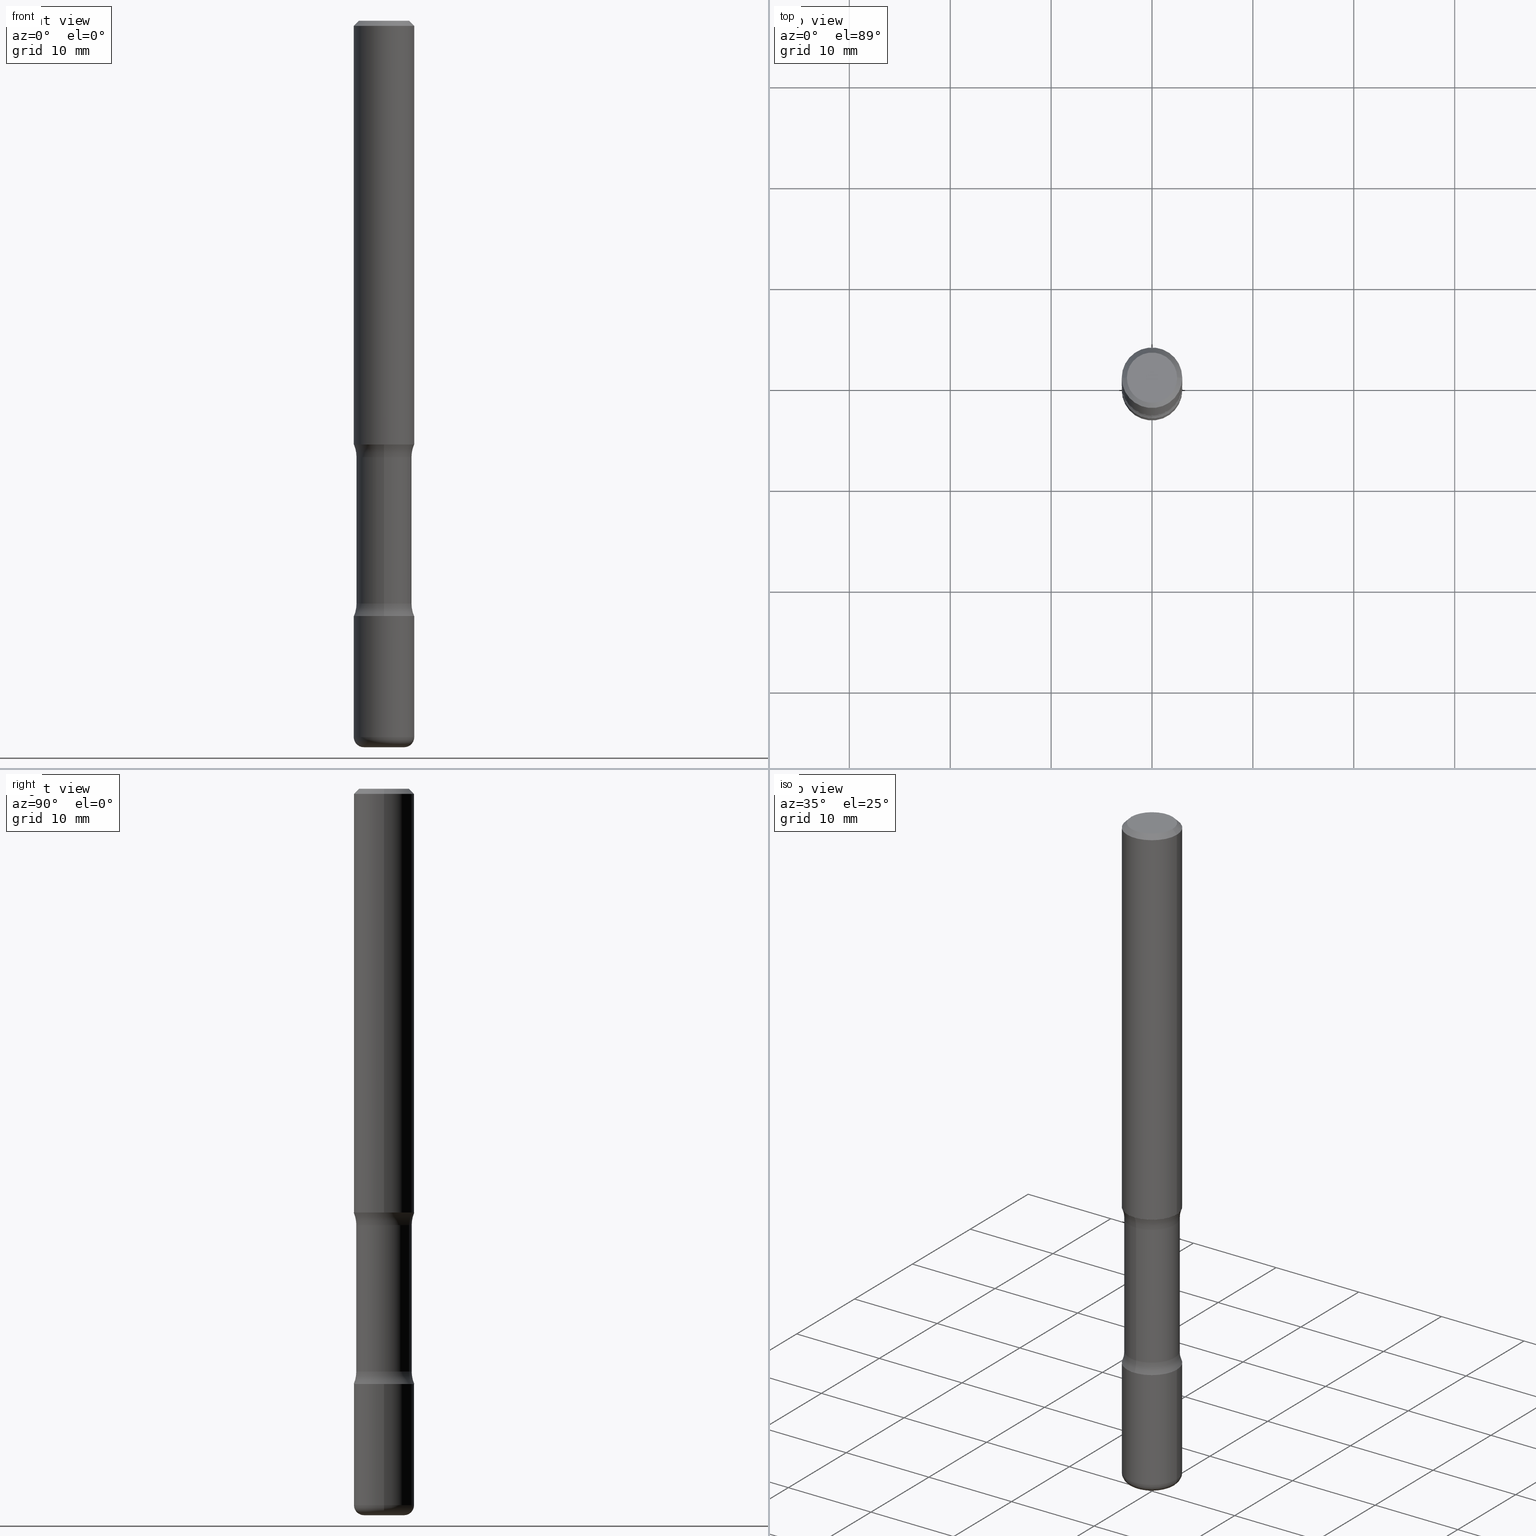
[diagram: canonical four-view strip — front | top / right | iso, engineering-drawing reading convention]
A machine part, canonical four-view strip (front | top / right | iso — engineering-drawing reading convention). The complete STEP part file that produces these views, byte-faithful:
ISO-10303-21;
HEADER;
FILE_DESCRIPTION (( 'STEP AP203' ),
    '1' );
FILE_NAME ('44792.STEP',
    '2024-03-02T03:22:04',
    ( '' ),
    ( '' ),
    'SwSTEP 2.0',
    'SolidWorks 2023',
    '' );
FILE_SCHEMA (( 'CONFIG_CONTROL_DESIGN' ));
ENDSEC;

DATA;
#1 = CARTESIAN_POINT ( 'NONE',  ( 1.627379452034826207E-15, 0.2330499999999940952, -1.702607000519273717 ) ) ;
#2 = ORIENTED_EDGE ( 'NONE', *, *, #118, .F. ) ;
#3 = TOROIDAL_SURFACE ( 'NONE', #364, 0.2330500000000000349, 0.1250000000000000278 ) ;
#4 = VERTEX_POINT ( 'NONE', #171 ) ;
#5 = CARTESIAN_POINT ( 'NONE',  ( 0.000000000000000000, 0.000000000000000000, 0.000000000000000000 ) ) ;
#6 = EDGE_CURVE ( 'NONE', #232, #475, #419, .T. ) ;
#7 = PERSON_AND_ORGANIZATION ( #362, #44 ) ;
#8 = CARTESIAN_POINT ( 'NONE',  ( -8.102248135367616287E-16, -0.1181000000000081568, -2.322799999999998644 ) ) ;
#9 = AXIS2_PLACEMENT_3D ( 'NONE', #199, #374, #546 ) ;
#10 = AXIS2_PLACEMENT_3D ( 'NONE', #345, #250, #167 ) ;
#11 = AXIS2_PLACEMENT_3D ( 'NONE', #390, #481, #393 ) ;
#12 = PERSON_AND_ORGANIZATION ( #362, #44 ) ;
#13 = DIRECTION ( 'NONE',  ( 0.7071067811865473507, -7.319954787623256045E-15, -0.7071067811865476838 ) ) ;
#14 = ORIENTED_EDGE ( 'NONE', *, *, #83, .F. ) ;
#15 = DIRECTION ( 'NONE',  ( -2.445468806185136597E-29, 3.491481338843145583E-15, 1.000000000000000000 ) ) ;
#16 = ORIENTED_EDGE ( 'NONE', *, *, #218, .T. ) ;
#17 = SECURITY_CLASSIFICATION_LEVEL ( 'unclassified' ) ;
#18 = CYLINDRICAL_SURFACE ( 'NONE', #359, 0.1080500000000000210 ) ;
#19 = ADVANCED_FACE ( 'NONE', ( #129 ), #254, .T. ) ;
#20 = ORIENTED_EDGE ( 'NONE', *, *, #68, .T. ) ;
#21 = DATE_AND_TIME ( #452, #279 ) ;
#22 = CARTESIAN_POINT ( 'NONE',  ( 1.627379452034840012E-15, 0.2330499999999920968, -2.273692999480725341 ) ) ;
#23 = VERTEX_POINT ( 'NONE', #301 ) ;
#24 = VERTEX_POINT ( 'NONE', #298 ) ;
#25 = EDGE_CURVE ( 'NONE', #195, #23, #281, .T. ) ;
#26 = DIRECTION ( 'NONE',  ( 1.000000000000000000, -6.982962677686266711E-15, 4.876176775795936353E-29 ) ) ;
#27 = AXIS2_PLACEMENT_3D ( 'NONE', #115, #160, #287 ) ;
#28 = CARTESIAN_POINT ( 'NONE',  ( 6.931925878012387517E-29, -9.896953003084780885E-15, -2.834600000000000009 ) ) ;
#29 = CYLINDRICAL_SURFACE ( 'NONE', #532, 0.1181000000000001077 ) ;
#30 = EDGE_CURVE ( 'NONE', #76, #23, #438, .T. ) ;
#31 = DIRECTION ( 'NONE',  ( 6.982962677686265922E-15, 1.000000000000000000, -2.313165108945183485E-15 ) ) ;
#32 = AXIS2_PLACEMENT_3D ( 'NONE', #448, #139, #499 ) ;
#33 = ORIENTED_EDGE ( 'NONE', *, *, #446, .F. ) ;
#34 = AXIS2_PLACEMENT_3D ( 'NONE', #235, #237, #332 ) ;
#35 = ORIENTED_EDGE ( 'NONE', *, *, #382, .T. ) ;
#36 = AXIS2_PLACEMENT_3D ( 'NONE', #5, #395, #337 ) ;
#37 = CARTESIAN_POINT ( 'NONE',  ( 4.890937612370289799E-31, -6.982962677686315028E-17, -0.02000000000000006981 ) ) ;
#38 = DIRECTION ( 'NONE',  ( -2.445468806185136597E-29, 3.491481338843145583E-15, 1.000000000000000000 ) ) ;
#39 = ADVANCED_FACE ( 'NONE', ( #514 ), #86, .T. ) ;
#40 = DIRECTION ( 'NONE',  ( 6.982962677686265922E-15, 1.000000000000000000, -2.528318365260769736E-15 ) ) ;
#41 = ORIENTED_EDGE ( 'NONE', *, *, #454, .F. ) ;
#42 = CIRCLE ( 'NONE', #27, 0.1250000000000000278 ) ;
#43 = CARTESIAN_POINT ( 'NONE',  ( 7.545091173240566728E-16, 0.1080499999999920691, -2.273692999480724897 ) ) ;
#44 = ORGANIZATION ( 'UNSPECIFIED', 'UNSPECIFIED', '' ) ;
#45 = ORIENTED_EDGE ( 'NONE', *, *, #446, .T. ) ;
#46 = DIRECTION ( 'NONE',  ( 2.515355941959131519E-29, -3.391398982686043410E-15, -1.000000000000000000 ) ) ;
#47 = DIRECTION ( 'NONE',  ( 2.515355941959131519E-29, -3.391398982686043410E-15, -1.000000000000000000 ) ) ;
#48 = CC_DESIGN_DATE_AND_TIME_ASSIGNMENT ( #225, #403, ( #80 ) ) ;
#49 = CARTESIAN_POINT ( 'NONE',  ( -8.102248135367784906E-16, -0.1181000000000059363, -1.653499999999998193 ) ) ;
#50 = APPLICATION_CONTEXT ( 'configuration controlled 3d designs of mechanical parts and assemblies' ) ;
#51 = DATE_AND_TIME ( #449, #558 ) ;
#52 = DIRECTION ( 'NONE',  ( 1.000000000000000000, -6.860497997771530774E-15, 4.842024534995332075E-29 ) ) ;
#53 = CIRCLE ( 'NONE', #144, 0.1250000000000000278 ) ;
#54 = TOROIDAL_SURFACE ( 'NONE', #178, 0.2330500000000000349, 0.1250000000000000278 ) ;
#55 = VERTEX_POINT ( 'NONE', #49 ) ;
#56 = DATE_TIME_ROLE ( 'creation_date' ) ;
#57 = DIRECTION ( 'NONE',  ( 2.515355941959131799E-29, -3.391398982686043015E-15, -1.000000000000000000 ) ) ;
#58 = PERSON_AND_ORGANIZATION ( #362, #44 ) ;
#59 = CC_DESIGN_DATE_AND_TIME_ASSIGNMENT ( #51, #56, ( #465 ) ) ;
#60 = FACE_OUTER_BOUND ( 'NONE', #431, .T. ) ;
#61 = ORIENTED_EDGE ( 'NONE', *, *, #316, .F. ) ;
#62 = APPLICATION_PROTOCOL_DEFINITION ( 'international standard', 'config_control_design', 1994, #259 ) ;
#63 = DIRECTION ( 'NONE',  ( 6.982962677686265922E-15, 1.000000000000000000, -3.391398982686043015E-15 ) ) ;
#64 = CIRCLE ( 'NONE', #456, 0.1181000000000000660 ) ;
#65 = APPROVAL_PERSON_ORGANIZATION ( #12, #509, #441 ) ;
#66 = ORIENTED_EDGE ( 'NONE', *, *, #273, .F. ) ;
#67 = DIRECTION ( 'NONE',  ( -0.7071067811865473507, 2.468850131082255088E-15, -0.7071067811865476838 ) ) ;
#68 = EDGE_CURVE ( 'NONE', #475, #232, #248, .T. ) ;
#69 = ORIENTED_EDGE ( 'NONE', *, *, #479, .F. ) ;
#70 = DIRECTION ( 'NONE',  ( -2.445468806185136877E-29, 3.491481338843145188E-15, 1.000000000000000000 ) ) ;
#71 = DIRECTION ( 'NONE',  ( 1.000000000000000000, -6.982962677686257244E-15, 0.000000000000000000 ) ) ;
#72 = CIRCLE ( 'NONE', #79, 0.1181000000000000660 ) ;
#73 = DIRECTION ( 'NONE',  ( -2.445468806185136597E-29, 3.491481338843145583E-15, 1.000000000000000000 ) ) ;
#74 = LINE ( 'NONE', #469, #288 ) ;
#75 = ADVANCED_FACE ( 'NONE', ( #176 ), #134, .T. ) ;
#76 = VERTEX_POINT ( 'NONE', #555 ) ;
#77 = FACE_OUTER_BOUND ( 'NONE', #494, .T. ) ;
#78 = EDGE_LOOP ( 'NONE', ( #207, #451 ) ) ;
#79 = AXIS2_PLACEMENT_3D ( 'NONE', #543, #154, #31 ) ;
#80 = SECURITY_CLASSIFICATION ( '', '', #17 ) ;
#81 =( CONVERSION_BASED_UNIT ( 'INCH', #424 ) LENGTH_UNIT ( ) NAMED_UNIT ( #545 ) );
#82 = DIRECTION ( 'NONE',  ( -2.445468806185136597E-29, 3.491481338843145583E-15, 1.000000000000000000 ) ) ;
#83 = EDGE_CURVE ( 'NONE', #76, #462, #437, .T. ) ;
#84 = VERTEX_POINT ( 'NONE', #209 ) ;
#85 = DIRECTION ( 'NONE',  ( 2.515355941959131519E-29, -3.391398982686043410E-15, -1.000000000000000000 ) ) ;
#86 = PLANE ( 'NONE',  #180 ) ;
#87 = ORIENTED_EDGE ( 'NONE', *, *, #382, .F. ) ;
#88 = VECTOR ( 'NONE', #334, 39.37007874015748143 ) ;
#89 = CARTESIAN_POINT ( 'NONE',  ( -0.1181000000000003713, 8.391509709326809581E-16, -5.809262341591062001E-30 ) ) ;
#90 = ADVANCED_FACE ( 'NONE', ( #168 ), #518, .F. ) ;
#91 = EDGE_LOOP ( 'NONE', ( #184, #423, #106, #20 ) ) ;
#92 = PERSON_AND_ORGANIZATION ( #362, #44 ) ;
#93 = CARTESIAN_POINT ( 'NONE',  ( 0.000000000000000000, 0.000000000000000000, 0.000000000000000000 ) ) ;
#94 = PERSON_AND_ORGANIZATION_ROLE ( 'design_owner' ) ;
#95 = DIRECTION ( 'NONE',  ( 1.000000000000000000, -6.982962677686265922E-15, 4.877161320636760066E-29 ) ) ;
#96 = EDGE_LOOP ( 'NONE', ( #405, #265, #346, #190 ) ) ;
#97 = AXIS2_PLACEMENT_3D ( 'NONE', #194, #508, #241 ) ;
#98 = CARTESIAN_POINT ( 'NONE',  ( 0.1181000000000003713, -8.246878922347507278E-16, 5.758764772215018657E-30 ) ) ;
#99 = EDGE_CURVE ( 'NONE', #503, #349, #493, .T. ) ;
#100 = CLOSED_SHELL ( 'NONE', ( #19, #159, #544, #236, #261, #357 ) ) ;
#101 = PERSON_AND_ORGANIZATION ( #362, #44 ) ;
#102 = FACE_OUTER_BOUND ( 'NONE', #147, .T. ) ;
#103 = ORIENTED_EDGE ( 'NONE', *, *, #218, .F. ) ;
#104 = DATE_AND_TIME ( #142, #483 ) ;
#105 = DIRECTION ( 'NONE',  ( 6.860497997771531562E-15, 1.000000000000000000, 0.000000000000000000 ) ) ;
#106 = ORIENTED_EDGE ( 'NONE', *, *, #181, .T. ) ;
#107 = FACE_OUTER_BOUND ( 'NONE', #234, .T. ) ;
#108 = ADVANCED_FACE ( 'NONE', ( #107 ), #3, .F. ) ;
#109 = AXIS2_PLACEMENT_3D ( 'NONE', #152, #15, #311 ) ;
#110 = ORIENTED_EDGE ( 'NONE', *, *, #205, .F. ) ;
#111 = VECTOR ( 'NONE', #384, 39.37007874015748143 ) ;
#112 = DIRECTION ( 'NONE',  ( -2.445468806185136597E-29, 3.491481338843145583E-15, 1.000000000000000000 ) ) ;
#113 = EDGE_LOOP ( 'NONE', ( #370, #415, #61, #103 ) ) ;
#114 = LINE ( 'NONE', #331, #88 ) ;
#115 = CARTESIAN_POINT ( 'NONE',  ( -1.598839058380599842E-15, -0.2330500000000079452, -2.273692999480723564 ) ) ;
#116 = CIRCLE ( 'NONE', #219, 0.09810000000000014542 ) ;
#117 = LOCAL_TIME ( 22, 22, 4.000000000000000000, #148 ) ;
#118 = EDGE_CURVE ( 'NONE', #55, #284, #275, .T. ) ;
#119 = PLANE ( 'NONE',  #371 ) ;
#120 = CYLINDRICAL_SURFACE ( 'NONE', #277, 0.1181000000000003713 ) ;
#121 = ORIENTED_EDGE ( 'NONE', *, *, #123, .F. ) ;
#122 = EDGE_LOOP ( 'NONE', ( #33, #303, #153, #14 ) ) ;
#123 = EDGE_CURVE ( 'NONE', #4, #232, #314, .T. ) ;
#124 = TOROIDAL_SURFACE ( 'NONE', #443, 0.07870000000000014484, 0.03940000000000033753 ) ;
#125 = CIRCLE ( 'NONE', #444, 0.1181000000000001354 ) ;
#126 = CARTESIAN_POINT ( 'NONE',  ( 3.996807211053585264E-29, -5.840149514753085094E-15, -1.653499999999998638 ) ) ;
#127 = DIRECTION ( 'NONE',  ( -2.515355941959131519E-29, 3.391398982686043015E-15, 1.000000000000000000 ) ) ;
#128 = DIRECTION ( 'NONE',  ( -1.000000000000000000, 6.982962677686265922E-15, -4.883557194083112340E-29 ) ) ;
#129 = FACE_OUTER_BOUND ( 'NONE', #113, .T. ) ;
#130 = CARTESIAN_POINT ( 'NONE',  ( -0.09810000000000014542, 7.199434520694548930E-16, -3.414809992080820212E-17 ) ) ;
#131 = ORIENTED_EDGE ( 'NONE', *, *, #505, .F. ) ;
#132 = CIRCLE ( 'NONE', #515, 0.03940000000000033753 ) ;
#133 = CARTESIAN_POINT ( 'NONE',  ( 5.560245305071629211E-29, -7.938556677945247658E-15, -2.273692999480724453 ) ) ;
#134 = CYLINDRICAL_SURFACE ( 'NONE', #352, 0.1181000000000001077 ) ;
#135 = PERSON_AND_ORGANIZATION ( #362, #44 ) ;
#136 = FACE_OUTER_BOUND ( 'NONE', #78, .T. ) ;
#137 = VERTEX_POINT ( 'NONE', #536 ) ;
#138 = COORDINATED_UNIVERSAL_TIME_OFFSET ( 5, 0, .BEHIND. ) ;
#139 = DIRECTION ( 'NONE',  ( 2.515355941959131519E-29, -3.391398982686043410E-15, -1.000000000000000000 ) ) ;
#140 = EDGE_CURVE ( 'NONE', #4, #367, #141, .T. ) ;
#141 = CIRCLE ( 'NONE', #255, 0.1080500000000000627 ) ;
#142 = CALENDAR_DATE ( 2024, 1, 3 ) ;
#143 = MANIFOLD_SOLID_BREP ( 'Body-Move/Copy2[1]', #380 ) ;
#144 = AXIS2_PLACEMENT_3D ( 'NONE', #264, #52, #105 ) ;
#145 = FACE_OUTER_BOUND ( 'NONE', #211, .T. ) ;
#146 = CC_DESIGN_APPROVAL ( #509, ( #465 ) ) ;
#147 = EDGE_LOOP ( 'NONE', ( #276, #398, #511, #271 ) ) ;
#148 = COORDINATED_UNIVERSAL_TIME_OFFSET ( 5, 0, .BEHIND. ) ;
#149 = CARTESIAN_POINT ( 'NONE',  ( 0.1181000000000001632, -8.800544403136822180E-16, -0.02000000000000006981 ) ) ;
#150 = EDGE_LOOP ( 'NONE', ( #542, #379, #173, #488 ) ) ;
#151 = CC_DESIGN_PERSON_AND_ORGANIZATION_ASSIGNMENT ( #58, #321, ( #80 ) ) ;
#152 = CARTESIAN_POINT ( 'NONE',  ( 4.043582671027119838E-29, -5.773164393777136338E-15, -1.653499999999998638 ) ) ;
#153 = ORIENTED_EDGE ( 'NONE', *, *, #283, .T. ) ;
#154 = DIRECTION ( 'NONE',  ( 2.515355941959131519E-29, -3.391398982686043410E-15, -1.000000000000000000 ) ) ;
#155 = CIRCLE ( 'NONE', #333, 0.1080500000000000627 ) ;
#156 = ORIENTED_EDGE ( 'NONE', *, *, #305, .T. ) ;
#157 = DIRECTION ( 'NONE',  ( 1.000000000000000000, -6.982962677686267499E-15, 0.000000000000000000 ) ) ;
#158 = DIRECTION ( 'NONE',  ( 1.000000000000000000, -6.982962677686267499E-15, 0.000000000000000000 ) ) ;
#159 = ADVANCED_FACE ( 'NONE', ( #102 ), #177, .T. ) ;
#160 = DIRECTION ( 'NONE',  ( 1.000000000000000000, -6.860497997771530774E-15, 4.842024534995332075E-29 ) ) ;
#161 = CIRCLE ( 'NONE', #340, 0.1181000000000000660 ) ;
#162 = CARTESIAN_POINT ( 'NONE',  ( -0.1181000000000001632, 7.548582654578862463E-16, -0.02000000000000006981 ) ) ;
#163 = ORIENTED_EDGE ( 'NONE', *, *, #140, .T. ) ;
#164 = EDGE_CURVE ( 'NONE', #294, #523, #457, .T. ) ;
#165 = CARTESIAN_POINT ( 'NONE',  ( 5.680334943006831795E-29, -8.110012853864854101E-15, -2.322799999999998644 ) ) ;
#166 = DIRECTION ( 'NONE',  ( 1.000000000000000000, -6.982962677686266711E-15, 4.876176775795935793E-29 ) ) ;
#167 = DIRECTION ( 'NONE',  ( 1.000000000000000000, -6.982962677686261189E-15, 4.883557194083111219E-29 ) ) ;
#168 = FACE_OUTER_BOUND ( 'NONE', #343, .T. ) ;
#169 = AXIS2_PLACEMENT_3D ( 'NONE', #510, #414, #158 ) ;
#170 = DIRECTION ( 'NONE',  ( 2.515355941959131519E-29, -3.391398982686043410E-15, -1.000000000000000000 ) ) ;
#171 = CARTESIAN_POINT ( 'NONE',  ( -7.757508110979756422E-16, -0.1080500000000060579, -1.702607000519272828 ) ) ;
#172 = DIRECTION ( 'NONE',  ( -1.000000000000000000, 6.982962677686267499E-15, 0.000000000000000000 ) ) ;
#173 = ORIENTED_EDGE ( 'NONE', *, *, #68, .F. ) ;
#174 = ADVANCED_FACE ( 'NONE', ( #60 ), #354, .F. ) ;
#175 = DIRECTION ( 'NONE',  ( -6.982962677686265922E-15, -1.000000000000000000, 0.000000000000000000 ) ) ;
#176 = FACE_OUTER_BOUND ( 'NONE', #323, .T. ) ;
#177 = CONICAL_SURFACE ( 'NONE', #378, 0.1181000000000001632, 0.7853981633974480570 ) ;
#178 = AXIS2_PLACEMENT_3D ( 'NONE', #133, #215, #428 ) ;
#179 = CARTESIAN_POINT ( 'NONE',  ( 4.120328796601531988E-29, -6.006690946356916109E-15, -1.702607000519273051 ) ) ;
#180 = AXIS2_PLACEMENT_3D ( 'NONE', #216, #433, #213 ) ;
#181 = EDGE_CURVE ( 'NONE', #24, #475, #266, .T. ) ;
#182 = CARTESIAN_POINT ( 'NONE',  ( 4.139826818236235587E-29, -5.978768669617546984E-15, -1.702607000519273051 ) ) ;
#183 = DIRECTION ( 'NONE',  ( -2.445468806185136877E-29, 3.491481338843145188E-15, 1.000000000000000000 ) ) ;
#184 = ORIENTED_EDGE ( 'NONE', *, *, #421, .F. ) ;
#185 = APPROVAL_STATUS ( 'not_yet_approved' ) ;
#186 = AXIS2_PLACEMENT_3D ( 'NONE', #467, #208, #430 ) ;
#187 = CARTESIAN_POINT ( 'NONE',  ( 6.967694114101516369E-29, -9.845730853203571031E-15, -2.834599999999998676 ) ) ;
#188 = CC_DESIGN_SECURITY_CLASSIFICATION ( #80, ( #360 ) ) ;
#189 = EDGE_CURVE ( 'NONE', #137, #358, #472, .T. ) ;
#190 = ORIENTED_EDGE ( 'NONE', *, *, #538, .F. ) ;
#191 = APPROVAL_DATE_TIME ( #21, #458 ) ;
#192 = CARTESIAN_POINT ( 'NONE',  ( -0.1181000000000001632, 7.548582654578862463E-16, -0.02000000000000006981 ) ) ;
#193 = ORIENTED_EDGE ( 'NONE', *, *, #421, .T. ) ;
#194 = CARTESIAN_POINT ( 'NONE',  ( 4.139826818236235587E-29, -5.978768669617546984E-15, -1.702607000519273051 ) ) ;
#195 = VERTEX_POINT ( 'NONE', #233 ) ;
#196 = DIRECTION ( 'NONE',  ( -6.982962677686266711E-15, -1.000000000000000000, 3.491481338843145583E-15 ) ) ;
#197 = VECTOR ( 'NONE', #392, 39.37007874015748143 ) ;
#198 = AXIS2_PLACEMENT_3D ( 'NONE', #1, #128, #175 ) ;
#199 = CARTESIAN_POINT ( 'NONE',  ( 5.680334943006831795E-29, -8.110012853864854101E-15, -2.322799999999998644 ) ) ;
#200 = ADVANCED_FACE ( 'NONE', ( #404 ), #18, .T. ) ;
#201 = DIRECTION ( 'NONE',  ( 1.000000000000000000, -6.982962677686268288E-15, 0.000000000000000000 ) ) ;
#202 = CARTESIAN_POINT ( 'NONE',  ( 7.545091173240426705E-16, 0.1080499999999940536, -1.702607000519273273 ) ) ;
#203 = ORIENTED_EDGE ( 'NONE', *, *, #479, .T. ) ;
#204 = AXIS2_PLACEMENT_3D ( 'NONE', #28, #73, #71 ) ;
#205 = EDGE_CURVE ( 'NONE', #4, #55, #53, .T. ) ;
#206 = DIRECTION ( 'NONE',  ( 1.000000000000000000, -6.982962677686261189E-15, 4.883557194083111219E-29 ) ) ;
#207 = ORIENTED_EDGE ( 'NONE', *, *, #214, .T. ) ;
#208 = DIRECTION ( 'NONE',  ( -2.445468806185136597E-29, 3.491481338843145583E-15, 1.000000000000000000 ) ) ;
#209 = CARTESIAN_POINT ( 'NONE',  ( -0.07870000000000014484, -9.128996768721627656E-15, -2.834600000000000009 ) ) ;
#210 = CYLINDRICAL_SURFACE ( 'NONE', #482, 0.1080500000000000210 ) ;
#211 = EDGE_LOOP ( 'NONE', ( #306, #445 ) ) ;
#212 = CIRCLE ( 'NONE', #501, 0.09810000000000014542 ) ;
#213 = DIRECTION ( 'NONE',  ( -1.000000000000000000, 6.982962677686265922E-15, -4.876176775795935793E-29 ) ) ;
#214 = EDGE_CURVE ( 'NONE', #503, #294, #116, .T. ) ;
#215 = DIRECTION ( 'NONE',  ( 2.515355941959131519E-29, -3.391398982686043410E-15, -1.000000000000000000 ) ) ;
#216 = CARTESIAN_POINT ( 'NONE',  ( -2.055165349161050565E-28, -4.925500292857757505E-14, -2.834599999999999120 ) ) ;
#217 = ORIENTED_EDGE ( 'NONE', *, *, #6, .T. ) ;
#218 = EDGE_CURVE ( 'NONE', #137, #523, #401, .T. ) ;
#219 = AXIS2_PLACEMENT_3D ( 'NONE', #230, #409, #95 ) ;
#220 = COORDINATED_UNIVERSAL_TIME_OFFSET ( 5, 0, .BEHIND. ) ;
#221 = PLANE ( 'NONE',  #304 ) ;
#222 = EDGE_LOOP ( 'NONE', ( #426, #534 ) ) ;
#223 = APPROVAL_ROLE ( '' ) ;
#224 = DIRECTION ( 'NONE',  ( -1.000000000000000000, 6.982962677686265922E-15, -4.883557194083112340E-29 ) ) ;
#225 = DATE_AND_TIME ( #408, #117 ) ;
#226 = DIRECTION ( 'NONE',  ( -6.982962677686265133E-15, -1.000000000000000000, 0.000000000000000000 ) ) ;
#227 = VERTEX_POINT ( 'NONE', #8 ) ;
#228 = COORDINATED_UNIVERSAL_TIME_OFFSET ( 5, 0, .BEHIND. ) ;
#229 = VECTOR ( 'NONE', #183, 39.37007874015748143 ) ;
#230 = CARTESIAN_POINT ( 'NONE',  ( 8.350811314681758556E-46, -1.192274536304357760E-31, -3.414809992080329023E-17 ) ) ;
#231 = PRODUCT ( '44792', '44792', '', ( #267 ) ) ;
#232 = VERTEX_POINT ( 'NONE', #528 ) ;
#233 = CARTESIAN_POINT ( 'NONE',  ( 0.1181000000000000660, -8.934700746099602364E-15, -2.322799999999998644 ) ) ;
#234 = EDGE_LOOP ( 'NONE', ( #394, #193, #217, #500 ) ) ;
#235 = CARTESIAN_POINT ( 'NONE',  ( 6.835574407048691801E-29, -9.759388638334358515E-15, -2.795199999999999019 ) ) ;
#236 = ADVANCED_FACE ( 'NONE', ( #136 ), #221, .F. ) ;
#237 = DIRECTION ( 'NONE',  ( -2.445468806185136597E-29, 3.491481338843145583E-15, 1.000000000000000000 ) ) ;
#238 = VECTOR ( 'NONE', #13, 39.37007874015748143 ) ;
#239 = CONICAL_SURFACE ( 'NONE', #289, 0.1181000000000001632, 0.7853981633974480570 ) ;
#240 = DIRECTION ( 'NONE',  ( 6.982962677686265922E-15, 1.000000000000000000, -3.391398982686043804E-15 ) ) ;
#241 = DIRECTION ( 'NONE',  ( 6.982962677686265922E-15, 1.000000000000000000, -3.391398982686043804E-15 ) ) ;
#242 = ORIENTED_EDGE ( 'NONE', *, *, #527, .T. ) ;
#243 = CC_DESIGN_PERSON_AND_ORGANIZATION_ASSIGNMENT ( #307, #269, ( #360 ) ) ;
#244 = DIRECTION ( 'NONE',  ( -1.000000000000000000, 7.105427357601014480E-15, 0.000000000000000000 ) ) ;
#245 = ORIENTED_EDGE ( 'NONE', *, *, #83, .T. ) ;
#246 = CIRCLE ( 'NONE', #34, 0.1181000000000001354 ) ;
#247 = FACE_OUTER_BOUND ( 'NONE', #363, .T. ) ;
#248 = CIRCLE ( 'NONE', #11, 0.1080500000000000071 ) ;
#249 = DIRECTION ( 'NONE',  ( 1.000000000000000000, -6.982962677686265133E-15, 0.000000000000000000 ) ) ;
#250 = DIRECTION ( 'NONE',  ( -2.445468806185136597E-29, 3.491481338843145583E-15, 1.000000000000000000 ) ) ;
#251 = ORIENTED_EDGE ( 'NONE', *, *, #30, .F. ) ;
#252 = ADVANCED_FACE ( 'NONE', ( #531 ), #387, .F. ) ;
#253 = LINE ( 'NONE', #89, #197 ) ;
#254 = CYLINDRICAL_SURFACE ( 'NONE', #36, 0.1181000000000003713 ) ;
#255 = AXIS2_PLACEMENT_3D ( 'NONE', #179, #270, #278 ) ;
#256 = AXIS2_PLACEMENT_3D ( 'NONE', #519, #522, #244 ) ;
#257 = AXIS2_PLACEMENT_3D ( 'NONE', #353, #355, #310 ) ;
#258 = ORIENTED_EDGE ( 'NONE', *, *, #164, .F. ) ;
#259 = APPLICATION_CONTEXT ( 'configuration controlled 3d designs of mechanical parts and assemblies' ) ;
#260 = DIRECTION ( 'NONE',  ( -2.445468806185136597E-29, 3.491481338843145583E-15, 1.000000000000000000 ) ) ;
#261 = ADVANCED_FACE ( 'NONE', ( #145 ), #119, .F. ) ;
#262 = ORIENTED_EDGE ( 'NONE', *, *, #439, .T. ) ;
#263 = APPROVAL_STATUS ( 'not_yet_approved' ) ;
#264 = CARTESIAN_POINT ( 'NONE',  ( -1.598839058380614239E-15, -0.2330500000000060301, -1.702607000519272162 ) ) ;
#265 = ORIENTED_EDGE ( 'NONE', *, *, #205, .T. ) ;
#266 = CIRCLE ( 'NONE', #464, 0.1250000000000000278 ) ;
#267 = MECHANICAL_CONTEXT ( 'NONE', #259, 'mechanical' ) ;
#268 = DIRECTION ( 'NONE',  ( 6.982962677686265922E-15, 1.000000000000000000, -5.056636730521541050E-15 ) ) ;
#269 = PERSON_AND_ORGANIZATION_ROLE ( 'design_supplier' ) ;
#270 = DIRECTION ( 'NONE',  ( 2.515355941959131519E-29, -3.391398982686043410E-15, -1.000000000000000000 ) ) ;
#271 = ORIENTED_EDGE ( 'NONE', *, *, #99, .F. ) ;
#272 = PERSON_AND_ORGANIZATION_ROLE ( 'creator' ) ;
#273 = EDGE_CURVE ( 'NONE', #23, #195, #64, .T. ) ;
#274 = DIRECTION ( 'NONE',  ( -6.982962677686265922E-15, -1.000000000000000000, 3.391398982686043015E-15 ) ) ;
#275 = CIRCLE ( 'NONE', #32, 0.1181000000000001354 ) ;
#276 = ORIENTED_EDGE ( 'NONE', *, *, #341, .F. ) ;
#277 = AXIS2_PLACEMENT_3D ( 'NONE', #420, #416, #26 ) ;
#278 = DIRECTION ( 'NONE',  ( 6.982962677686265922E-15, 1.000000000000000000, -2.528318365260769736E-15 ) ) ;
#279 = LOCAL_TIME ( 22, 22, 4.000000000000000000, #317 ) ;
#280 = EDGE_LOOP ( 'NONE', ( #386, #484 ) ) ;
#281 = CIRCLE ( 'NONE', #329, 0.1181000000000000660 ) ;
#282 = CARTESIAN_POINT ( 'NONE',  ( 5.680334943006831795E-29, -8.110012853864854101E-15, -2.322799999999998644 ) ) ;
#283 = EDGE_CURVE ( 'NONE', #459, #462, #132, .T. ) ;
#284 = VERTEX_POINT ( 'NONE', #325 ) ;
#285 = DESIGN_CONTEXT ( 'detailed design', #50, 'design' ) ;
#286 = FACE_OUTER_BOUND ( 'NONE', #470, .T. ) ;
#287 = DIRECTION ( 'NONE',  ( 6.860497997771529985E-15, 1.000000000000000000, 0.000000000000000000 ) ) ;
#288 = VECTOR ( 'NONE', #70, 39.37007874015748143 ) ;
#289 = AXIS2_PLACEMENT_3D ( 'NONE', #37, #474, #172 ) ;
#290 = CC_DESIGN_PERSON_AND_ORGANIZATION_ASSIGNMENT ( #101, #272, ( #360 ) ) ;
#291 = DIRECTION ( 'NONE',  ( -2.445468806185136597E-29, 3.491481338843145583E-15, 1.000000000000000000 ) ) ;
#292 = AXIS2_PLACEMENT_3D ( 'NONE', #473, #82, #249 ) ;
#293 = CARTESIAN_POINT ( 'NONE',  ( -0.1181000000000005795, -2.082346039344311366E-15, -1.653499999999998638 ) ) ;
#294 = VERTEX_POINT ( 'NONE', #375 ) ;
#295 = FACE_OUTER_BOUND ( 'NONE', #150, .T. ) ;
#296 = CARTESIAN_POINT ( 'NONE',  ( 5.556813357458885632E-29, -7.943471422261023875E-15, -2.273692999480724453 ) ) ;
#297 = DIRECTION ( 'NONE',  ( -2.445468806185136597E-29, 3.491481338843145583E-15, 1.000000000000000000 ) ) ;
#298 = CARTESIAN_POINT ( 'NONE',  ( 8.246878922348052578E-16, 0.1180999999999919753, -2.322799999999999088 ) ) ;
#299 = EDGE_CURVE ( 'NONE', #349, #523, #312, .T. ) ;
#300 = FACE_OUTER_BOUND ( 'NONE', #91, .T. ) ;
#301 = CARTESIAN_POINT ( 'NONE',  ( -0.1181000000000000660, -8.095549775166928111E-15, -2.322799999999998644 ) ) ;
#302 = DIRECTION ( 'NONE',  ( 6.982962677686265922E-15, 1.000000000000000000, -2.313165108945183485E-15 ) ) ;
#303 = ORIENTED_EDGE ( 'NONE', *, *, #327, .T. ) ;
#304 = AXIS2_PLACEMENT_3D ( 'NONE', #308, #486, #442 ) ;
#305 = EDGE_CURVE ( 'NONE', #367, #475, #114, .T. ) ;
#306 = ORIENTED_EDGE ( 'NONE', *, *, #189, .F. ) ;
#307 = PERSON_AND_ORGANIZATION ( #362, #44 ) ;
#308 = CARTESIAN_POINT ( 'NONE',  ( 6.850286386810237370E-16, 0.09810000000000014542, -3.595883693009147092E-16 ) ) ;
#309 = ORIENTED_EDGE ( 'NONE', *, *, #30, .T. ) ;
#310 = DIRECTION ( 'NONE',  ( 1.000000000000000000, 0.000000000000000000, 0.000000000000000000 ) ) ;
#311 = DIRECTION ( 'NONE',  ( 1.000000000000000000, -6.982962677686262766E-15, 0.000000000000000000 ) ) ;
#312 = CIRCLE ( 'NONE', #434, 0.1181000000000001632 ) ;
#313 = CALENDAR_DATE ( 2024, 1, 3 ) ;
#314 = LINE ( 'NONE', #356, #489 ) ;
#315 = ORIENTED_EDGE ( 'NONE', *, *, #368, .F. ) ;
#316 = EDGE_CURVE ( 'NONE', #523, #349, #324, .T. ) ;
#317 = COORDINATED_UNIVERSAL_TIME_OFFSET ( 5, 0, .BEHIND. ) ;
#318 = DIRECTION ( 'NONE',  ( 2.515355941959131519E-29, -3.391398982686043410E-15, -1.000000000000000000 ) ) ;
#319 = ORIENTED_EDGE ( 'NONE', *, *, #99, .T. ) ;
#320 = PRODUCT_DEFINITION_SHAPE ( 'NONE', 'NONE',  #465 ) ;
#321 = PERSON_AND_ORGANIZATION_ROLE ( 'classification_officer' ) ;
#322 = CARTESIAN_POINT ( 'NONE',  ( 5.560245305071629211E-29, -7.938556677945247658E-15, -2.273692999480724453 ) ) ;
#323 = EDGE_LOOP ( 'NONE', ( #540, #309, #478, #87 ) ) ;
#324 = CIRCLE ( 'NONE', #169, 0.1181000000000001632 ) ;
#325 = CARTESIAN_POINT ( 'NONE',  ( 8.246878922347888889E-16, 0.1180999999999942929, -1.653499999999999082 ) ) ;
#326 = CC_DESIGN_APPROVAL ( #391, ( #360 ) ) ;
#327 = EDGE_CURVE ( 'NONE', #84, #459, #425, .T. ) ;
#328 = ORIENTED_EDGE ( 'NONE', *, *, #521, .T. ) ;
#329 = AXIS2_PLACEMENT_3D ( 'NONE', #477, #38, #429 ) ;
#330 = DIRECTION ( 'NONE',  ( -2.445468806185136597E-29, 3.491481338843145583E-15, 1.000000000000000000 ) ) ;
#331 = CARTESIAN_POINT ( 'NONE',  ( 7.545091173240708723E-16, 0.1080499999999901678, -2.834599999999999120 ) ) ;
#332 = DIRECTION ( 'NONE',  ( 1.000000000000000000, -6.982962677686265133E-15, 0.000000000000000000 ) ) ;
#333 = AXIS2_PLACEMENT_3D ( 'NONE', #436, #383, #40 ) ;
#334 = DIRECTION ( 'NONE',  ( 2.515355941959131799E-29, -3.391398982686043015E-15, -1.000000000000000000 ) ) ;
#335 = EDGE_LOOP ( 'NONE', ( #251, #245, #35, #66 ) ) ;
#336 = FACE_OUTER_BOUND ( 'NONE', #122, .T. ) ;
#337 = DIRECTION ( 'NONE',  ( 1.000000000000000000, -6.982962677686266711E-15, 4.876176775795936353E-29 ) ) ;
#338 = DIRECTION ( 'NONE',  ( 6.982962677686265922E-15, 1.000000000000000000, -5.056636730521541050E-15 ) ) ;
#339 = CARTESIAN_POINT ( 'NONE',  ( 5.680334943006831795E-29, -8.110012853864854101E-15, -2.322799999999998644 ) ) ;
#340 = AXIS2_PLACEMENT_3D ( 'NONE', #165, #46, #302 ) ;
#341 = EDGE_CURVE ( 'NONE', #294, #503, #212, .T. ) ;
#342 = DIRECTION ( 'NONE',  ( -2.445468806185136597E-29, 3.491481338843145583E-15, 1.000000000000000000 ) ) ;
#343 = EDGE_LOOP ( 'NONE', ( #559, #328 ) ) ;
#344 = MANIFOLD_SOLID_BREP ( 'Body-Move/Copy2[2]', #100 ) ;
#345 = CARTESIAN_POINT ( 'NONE',  ( 6.835574407048691801E-29, -9.759388638334358515E-15, -2.795199999999999019 ) ) ;
#346 = ORIENTED_EDGE ( 'NONE', *, *, #118, .T. ) ;
#347 = EDGE_CURVE ( 'NONE', #24, #227, #72, .T. ) ;
#348 =( LENGTH_UNIT ( ) NAMED_UNIT ( * ) SI_UNIT ( $, .METRE. ) );
#349 = VERTEX_POINT ( 'NONE', #162 ) ;
#350 = AXIS2_PLACEMENT_3D ( 'NONE', #182, #490, #240 ) ;
#351 = DIRECTION ( 'NONE',  ( 2.515355941959131519E-29, -3.391398982686043410E-15, -1.000000000000000000 ) ) ;
#352 = AXIS2_PLACEMENT_3D ( 'NONE', #93, #260, #166 ) ;
#353 = CARTESIAN_POINT ( 'NONE',  ( 0.000000000000000000, 0.000000000000000000, 0.000000000000000000 ) ) ;
#354 = PLANE ( 'NONE',  #549 ) ;
#355 = DIRECTION ( 'NONE',  ( 0.000000000000000000, 0.000000000000000000, 1.000000000000000000 ) ) ;
#356 = CARTESIAN_POINT ( 'NONE',  ( -7.412768086591444935E-16, -0.1080500000000098743, -2.834599999999998232 ) ) ;
#357 = ADVANCED_FACE ( 'NONE', ( #286 ), #120, .T. ) ;
#358 = VERTEX_POINT ( 'NONE', #293 ) ;
#359 = AXIS2_PLACEMENT_3D ( 'NONE', #187, #318, #268 ) ;
#360 = PRODUCT_DEFINITION_FORMATION_WITH_SPECIFIED_SOURCE ( 'ANY', '', #231, .NOT_KNOWN. ) ;
#361 = DIRECTION ( 'NONE',  ( 6.982962677686265922E-15, 1.000000000000000000, -3.391398982686043804E-15 ) ) ;
#362 = PERSON ( 'UNSPECIFIED', 'UNSPECIFIED', 'UNSPECIFIED', ('UNSPECIFIED'), ('UNSPECIFIED'), ('UNSPECIFIED') ) ;
#363 = EDGE_LOOP ( 'NONE', ( #258, #381, #319, #455 ) ) ;
#364 = AXIS2_PLACEMENT_3D ( 'NONE', #322, #351, #361 ) ;
#365 = SHAPE_DEFINITION_REPRESENTATION ( #320, #413 ) ;
#366 = DIRECTION ( 'NONE',  ( -1.000000000000000000, 6.982962677686267499E-15, 0.000000000000000000 ) ) ;
#367 = VERTEX_POINT ( 'NONE', #202 ) ;
#368 = EDGE_CURVE ( 'NONE', #462, #76, #246, .T. ) ;
#369 = PLANE ( 'NONE',  #9 ) ;
#370 = ORIENTED_EDGE ( 'NONE', *, *, #189, .T. ) ;
#371 = AXIS2_PLACEMENT_3D ( 'NONE', #502, #541, #422 ) ;
#372 = CARTESIAN_POINT ( 'NONE',  ( 8.350811314681758556E-46, -1.192274536304357760E-31, -3.414809992080329023E-17 ) ) ;
#373 = LOCAL_TIME ( 22, 22, 4.000000000000000000, #220 ) ;
#374 = DIRECTION ( 'NONE',  ( 2.438088387897960049E-29, -3.491481338843145188E-15, -1.000000000000000000 ) ) ;
#375 = CARTESIAN_POINT ( 'NONE',  ( 0.09810000000000014542, -7.765346469475353361E-16, -3.414809992079818112E-17 ) ) ;
#376 = ADVANCED_FACE ( 'NONE', ( #461 ), #29, .T. ) ;
#377 = CARTESIAN_POINT ( 'NONE',  ( 4.890937612370289799E-31, -6.982962677686315028E-17, -0.02000000000000006981 ) ) ;
#378 = AXIS2_PLACEMENT_3D ( 'NONE', #453, #497, #366 ) ;
#379 = ORIENTED_EDGE ( 'NONE', *, *, #123, .T. ) ;
#380 = CLOSED_SHELL ( 'NONE', ( #75, #487, #39, #548, #376, #411 ) ) ;
#381 = ORIENTED_EDGE ( 'NONE', *, *, #214, .F. ) ;
#382 = EDGE_CURVE ( 'NONE', #462, #195, #74, .T. ) ;
#383 = DIRECTION ( 'NONE',  ( 2.515355941959131519E-29, -3.391398982686043410E-15, -1.000000000000000000 ) ) ;
#384 = DIRECTION ( 'NONE',  ( -2.445468806185136877E-29, 3.491481338843145188E-15, 1.000000000000000000 ) ) ;
#385 = DIRECTION ( 'NONE',  ( 6.982962677686265922E-15, 1.000000000000000000, -2.313165108945182302E-15 ) ) ;
#386 = ORIENTED_EDGE ( 'NONE', *, *, #439, .F. ) ;
#387 = TOROIDAL_SURFACE ( 'NONE', #350, 0.2330500000000000627, 0.1250000000000000278 ) ;
#388 = CARTESIAN_POINT ( 'NONE',  ( 4.043582671027119838E-29, -5.773164393777136338E-15, -1.653499999999998638 ) ) ;
#389 = CLOSED_SHELL ( 'NONE', ( #471, #108, #252, #400, #174, #90, #560, #200 ) ) ;
#390 = CARTESIAN_POINT ( 'NONE',  ( 5.556813357458885632E-29, -7.943471422261023875E-15, -2.273692999480724453 ) ) ;
#391 = APPROVAL ( #263, 'UNSPECIFIED' ) ;
#392 = DIRECTION ( 'NONE',  ( -2.445468806185136877E-29, 3.491481338843145188E-15, 1.000000000000000000 ) ) ;
#393 = DIRECTION ( 'NONE',  ( 6.982962677686265922E-15, 1.000000000000000000, -2.528318365260770920E-15 ) ) ;
#394 = ORIENTED_EDGE ( 'NONE', *, *, #521, .F. ) ;
#395 = DIRECTION ( 'NONE',  ( -2.445468806185136597E-29, 3.491481338843145583E-15, 1.000000000000000000 ) ) ;
#396 = CIRCLE ( 'NONE', #186, 0.07870000000000014484 ) ;
#397 =( NAMED_UNIT ( * ) SI_UNIT ( $, .STERADIAN. ) SOLID_ANGLE_UNIT ( ) );
#398 = ORIENTED_EDGE ( 'NONE', *, *, #164, .T. ) ;
#399 = VECTOR ( 'NONE', #67, 39.37007874015748143 ) ;
#400 = ADVANCED_FACE ( 'NONE', ( #77 ), #406, .F. ) ;
#401 = LINE ( 'NONE', #98, #229 ) ;
#402 = UNCERTAINTY_MEASURE_WITH_UNIT (LENGTH_MEASURE( 1.000000000000000082E-05 ), #81, 'distance_accuracy_value', 'NONE');
#403 = DATE_TIME_ROLE ( 'classification_date' ) ;
#404 = FACE_OUTER_BOUND ( 'NONE', #553, .T. ) ;
#405 = ORIENTED_EDGE ( 'NONE', *, *, #140, .F. ) ;
#406 = TOROIDAL_SURFACE ( 'NONE', #97, 0.2330500000000000627, 0.1250000000000000278 ) ;
#407 =( GEOMETRIC_REPRESENTATION_CONTEXT ( 3 ) GLOBAL_UNCERTAINTY_ASSIGNED_CONTEXT ( ( #402 ) ) GLOBAL_UNIT_ASSIGNED_CONTEXT ( ( #81, #512, #397 ) ) REPRESENTATION_CONTEXT ( 'NONE', 'WORKASPACE' ) );
#408 = CALENDAR_DATE ( 2024, 1, 3 ) ;
#409 = DIRECTION ( 'NONE',  ( -2.445468806185136597E-29, 3.491481338843145583E-15, 1.000000000000000000 ) ) ;
#410 = AXIS2_PLACEMENT_3D ( 'NONE', #296, #47, #525 ) ;
#411 = ADVANCED_FACE ( 'NONE', ( #418 ), #369, .F. ) ;
#412 = ORIENTED_EDGE ( 'NONE', *, *, #6, .F. ) ;
#413 = ADVANCED_BREP_SHAPE_REPRESENTATION ( '44792', ( #143, #344, #517, #257 ), #407 ) ;
#414 = DIRECTION ( 'NONE',  ( -2.445468806185136597E-29, 3.491481338843145583E-15, 1.000000000000000000 ) ) ;
#415 = ORIENTED_EDGE ( 'NONE', *, *, #505, .T. ) ;
#416 = DIRECTION ( 'NONE',  ( -2.445468806185136597E-29, 3.491481338843145583E-15, 1.000000000000000000 ) ) ;
#417 = CIRCLE ( 'NONE', #491, 0.1181000000000005795 ) ;
#418 = FACE_OUTER_BOUND ( 'NONE', #222, .T. ) ;
#419 = CIRCLE ( 'NONE', #410, 0.1080500000000000071 ) ;
#420 = CARTESIAN_POINT ( 'NONE',  ( 0.000000000000000000, 0.000000000000000000, 0.000000000000000000 ) ) ;
#421 = EDGE_CURVE ( 'NONE', #227, #232, #42, .T. ) ;
#422 = DIRECTION ( 'NONE',  ( 1.000000000000000000, -6.982962677686265922E-15, 4.876176775795935793E-29 ) ) ;
#423 = ORIENTED_EDGE ( 'NONE', *, *, #347, .F. ) ;
#424 = LENGTH_MEASURE_WITH_UNIT ( LENGTH_MEASURE( 0.02539999999999999897 ), #348 );
#425 = CIRCLE ( 'NONE', #204, 0.07870000000000014484 ) ;
#426 = ORIENTED_EDGE ( 'NONE', *, *, #25, .T. ) ;
#427 = CC_DESIGN_PERSON_AND_ORGANIZATION_ASSIGNMENT ( #7, #447, ( #465 ) ) ;
#428 = DIRECTION ( 'NONE',  ( 6.982962677686265922E-15, 1.000000000000000000, -3.391398982686043804E-15 ) ) ;
#429 = DIRECTION ( 'NONE',  ( 1.000000000000000000, -6.982962677686269077E-15, 0.000000000000000000 ) ) ;
#430 = DIRECTION ( 'NONE',  ( 1.000000000000000000, -6.982962677686257244E-15, 0.000000000000000000 ) ) ;
#431 = EDGE_LOOP ( 'NONE', ( #69, #2 ) ) ;
#432 = CARTESIAN_POINT ( 'NONE',  ( 0.1181000000000001632, -8.800544403136822180E-16, -0.02000000000000006981 ) ) ;
#433 = DIRECTION ( 'NONE',  ( 2.438088387897960049E-29, -3.491481338843145188E-15, -1.000000000000000000 ) ) ;
#434 = AXIS2_PLACEMENT_3D ( 'NONE', #377, #112, #157 ) ;
#435 = CC_DESIGN_APPROVAL ( #458, ( #80 ) ) ;
#436 = CARTESIAN_POINT ( 'NONE',  ( 4.120328796601531988E-29, -6.006690946356916109E-15, -1.702607000519273051 ) ) ;
#437 = CIRCLE ( 'NONE', #292, 0.1181000000000001354 ) ;
#438 = LINE ( 'NONE', #440, #111 ) ;
#439 = EDGE_CURVE ( 'NONE', #459, #84, #396, .T. ) ;
#440 = CARTESIAN_POINT ( 'NONE',  ( -0.1181000000000001077, 8.391509709326790846E-16, -5.809262341591049389E-30 ) ) ;
#441 = APPROVAL_ROLE ( '' ) ;
#442 = DIRECTION ( 'NONE',  ( -1.000000000000000000, 6.982962677686265922E-15, -4.876176775795935793E-29 ) ) ;
#443 = AXIS2_PLACEMENT_3D ( 'NONE', #476, #342, #206 ) ;
#444 = AXIS2_PLACEMENT_3D ( 'NONE', #126, #170, #385 ) ;
#445 = ORIENTED_EDGE ( 'NONE', *, *, #527, .F. ) ;
#446 = EDGE_CURVE ( 'NONE', #84, #76, #507, .T. ) ;
#447 = PERSON_AND_ORGANIZATION_ROLE ( 'creator' ) ;
#448 = CARTESIAN_POINT ( 'NONE',  ( 3.996807211053585264E-29, -5.840149514753085094E-15, -1.653499999999998638 ) ) ;
#449 = CALENDAR_DATE ( 2024, 1, 3 ) ;
#450 = DIRECTION ( 'NONE',  ( 2.515355941959131519E-29, -3.391398982686043015E-15, -1.000000000000000000 ) ) ;
#451 = ORIENTED_EDGE ( 'NONE', *, *, #341, .T. ) ;
#452 = CALENDAR_DATE ( 2024, 1, 3 ) ;
#453 = CARTESIAN_POINT ( 'NONE',  ( 4.890937612370289799E-31, -6.982962677686315028E-17, -0.02000000000000006981 ) ) ;
#454 = EDGE_CURVE ( 'NONE', #367, #4, #155, .T. ) ;
#455 = ORIENTED_EDGE ( 'NONE', *, *, #299, .T. ) ;
#456 = AXIS2_PLACEMENT_3D ( 'NONE', #282, #291, #468 ) ;
#457 = LINE ( 'NONE', #149, #238 ) ;
#458 = APPROVAL ( #185, 'UNSPECIFIED' ) ;
#459 = VERTEX_POINT ( 'NONE', #554 ) ;
#460 = AXIS2_PLACEMENT_3D ( 'NONE', #339, #127, #274 ) ;
#461 = FACE_OUTER_BOUND ( 'NONE', #335, .T. ) ;
#462 = VERTEX_POINT ( 'NONE', #480 ) ;
#463 = CARTESIAN_POINT ( 'NONE',  ( 0.07870000000000014484, -1.030894780106826677E-14, -2.795199999999999019 ) ) ;
#464 = AXIS2_PLACEMENT_3D ( 'NONE', #22, #224, #226 ) ;
#465 = PRODUCT_DEFINITION ( 'UNKNOWN', '', #360, #285 ) ;
#466 = APPROVAL_PERSON_ORGANIZATION ( #92, #458, #485 ) ;
#467 = CARTESIAN_POINT ( 'NONE',  ( 6.931925878012387517E-29, -9.896953003084780885E-15, -2.834600000000000009 ) ) ;
#468 = DIRECTION ( 'NONE',  ( 1.000000000000000000, -6.982962677686269077E-15, 0.000000000000000000 ) ) ;
#469 = CARTESIAN_POINT ( 'NONE',  ( 0.1181000000000001077, -8.246878922347488542E-16, 5.758764772215005345E-30 ) ) ;
#470 = EDGE_LOOP ( 'NONE', ( #131, #242, #16, #520 ) ) ;
#471 = ADVANCED_FACE ( 'NONE', ( #295 ), #210, .T. ) ;
#472 = CIRCLE ( 'NONE', #109, 0.1181000000000005795 ) ;
#473 = CARTESIAN_POINT ( 'NONE',  ( 6.835574407048691801E-29, -9.759388638334358515E-15, -2.795199999999999019 ) ) ;
#474 = DIRECTION ( 'NONE',  ( 2.445468806185136597E-29, -3.491481338843145583E-15, -1.000000000000000000 ) ) ;
#475 = VERTEX_POINT ( 'NONE', #43 ) ;
#476 = CARTESIAN_POINT ( 'NONE',  ( 6.835574407048691801E-29, -9.759388638334358515E-15, -2.795199999999999019 ) ) ;
#477 = CARTESIAN_POINT ( 'NONE',  ( 5.680334943006831795E-29, -8.110012853864854101E-15, -2.322799999999998644 ) ) ;
#478 = ORIENTED_EDGE ( 'NONE', *, *, #25, .F. ) ;
#479 = EDGE_CURVE ( 'NONE', #284, #55, #125, .T. ) ;
#480 = CARTESIAN_POINT ( 'NONE',  ( 0.1181000000000003020, -1.058407653056910836E-14, -2.795199999999999019 ) ) ;
#481 = DIRECTION ( 'NONE',  ( 2.515355941959131519E-29, -3.391398982686043410E-15, -1.000000000000000000 ) ) ;
#482 = AXIS2_PLACEMENT_3D ( 'NONE', #557, #85, #338 ) ;
#483 = LOCAL_TIME ( 22, 22, 4.000000000000000000, #228 ) ;
#484 = ORIENTED_EDGE ( 'NONE', *, *, #327, .F. ) ;
#485 = APPROVAL_ROLE ( '' ) ;
#486 = DIRECTION ( 'NONE',  ( 2.438088387897960049E-29, -3.491481338843145188E-15, -1.000000000000000000 ) ) ;
#487 = ADVANCED_FACE ( 'NONE', ( #524 ), #124, .T. ) ;
#488 = ORIENTED_EDGE ( 'NONE', *, *, #305, .F. ) ;
#489 = VECTOR ( 'NONE', #57, 39.37007874015748143 ) ;
#490 = DIRECTION ( 'NONE',  ( 2.515355941959131519E-29, -3.391398982686043410E-15, -1.000000000000000000 ) ) ;
#491 = AXIS2_PLACEMENT_3D ( 'NONE', #388, #297, #516 ) ;
#492 = DATE_AND_TIME ( #313, #373 ) ;
#493 = LINE ( 'NONE', #192, #399 ) ;
#494 = EDGE_LOOP ( 'NONE', ( #110, #41, #537, #203 ) ) ;
#495 = CC_DESIGN_PERSON_AND_ORGANIZATION_ASSIGNMENT ( #496, #94, ( #231 ) ) ;
#496 = PERSON_AND_ORGANIZATION ( #362, #44 ) ;
#497 = DIRECTION ( 'NONE',  ( 2.445468806185136597E-29, -3.491481338843145583E-15, -1.000000000000000000 ) ) ;
#498 = ORIENTED_EDGE ( 'NONE', *, *, #283, .F. ) ;
#499 = DIRECTION ( 'NONE',  ( 6.982962677686265922E-15, 1.000000000000000000, -2.313165108945182302E-15 ) ) ;
#500 = ORIENTED_EDGE ( 'NONE', *, *, #181, .F. ) ;
#501 = AXIS2_PLACEMENT_3D ( 'NONE', #372, #506, #547 ) ;
#502 = CARTESIAN_POINT ( 'NONE',  ( 4.043582671027119838E-29, -5.773164393777136338E-15, -1.653499999999998638 ) ) ;
#503 = VERTEX_POINT ( 'NONE', #130 ) ;
#504 = CARTESIAN_POINT ( 'NONE',  ( 0.000000000000000000, 0.000000000000000000, 0.000000000000000000 ) ) ;
#505 = EDGE_CURVE ( 'NONE', #358, #349, #253, .T. ) ;
#506 = DIRECTION ( 'NONE',  ( -2.445468806185136597E-29, 3.491481338843145583E-15, 1.000000000000000000 ) ) ;
#507 = CIRCLE ( 'NONE', #256, 0.03940000000000033753 ) ;
#508 = DIRECTION ( 'NONE',  ( 2.515355941959131519E-29, -3.391398982686043410E-15, -1.000000000000000000 ) ) ;
#509 = APPROVAL ( #529, 'UNSPECIFIED' ) ;
#510 = CARTESIAN_POINT ( 'NONE',  ( 4.890937612370289799E-31, -6.982962677686315028E-17, -0.02000000000000006981 ) ) ;
#511 = ORIENTED_EDGE ( 'NONE', *, *, #316, .T. ) ;
#512 =( NAMED_UNIT ( * ) PLANE_ANGLE_UNIT ( ) SI_UNIT ( $, .RADIAN. ) );
#513 = PRODUCT_RELATED_PRODUCT_CATEGORY ( 'detail', '', ( #231 ) ) ;
#514 = FACE_OUTER_BOUND ( 'NONE', #280, .T. ) ;
#515 = AXIS2_PLACEMENT_3D ( 'NONE', #463, #196, #201 ) ;
#516 = DIRECTION ( 'NONE',  ( 1.000000000000000000, -6.982962677686262766E-15, 0.000000000000000000 ) ) ;
#517 = MANIFOLD_SOLID_BREP ( 'Body-Move/Copy2[4]', #389 ) ;
#518 = PLANE ( 'NONE',  #460 ) ;
#519 = CARTESIAN_POINT ( 'NONE',  ( -0.07870000000000014484, -9.200191505291158146E-15, -2.795199999999999019 ) ) ;
#520 = ORIENTED_EDGE ( 'NONE', *, *, #299, .F. ) ;
#521 = EDGE_CURVE ( 'NONE', #227, #24, #161, .T. ) ;
#522 = DIRECTION ( 'NONE',  ( 7.105427357601001859E-15, 1.000000000000000000, -3.491481338843145583E-15 ) ) ;
#523 = VERTEX_POINT ( 'NONE', #432 ) ;
#524 = FACE_OUTER_BOUND ( 'NONE', #552, .T. ) ;
#525 = DIRECTION ( 'NONE',  ( 6.982962677686265922E-15, 1.000000000000000000, -2.528318365260770920E-15 ) ) ;
#526 = APPROVAL_DATE_TIME ( #492, #391 ) ;
#527 = EDGE_CURVE ( 'NONE', #358, #137, #417, .T. ) ;
#528 = CARTESIAN_POINT ( 'NONE',  ( -7.757508110979598650E-16, -0.1080500000000079452, -2.273692999480724009 ) ) ;
#529 = APPROVAL_STATUS ( 'not_yet_approved' ) ;
#530 = APPLICATION_PROTOCOL_DEFINITION ( 'international standard', 'config_control_design', 1994, #50 ) ;
#531 = FACE_OUTER_BOUND ( 'NONE', #96, .T. ) ;
#532 = AXIS2_PLACEMENT_3D ( 'NONE', #504, #330, #551 ) ;
#533 = TOROIDAL_SURFACE ( 'NONE', #10, 0.07870000000000014484, 0.03940000000000033753 ) ;
#534 = ORIENTED_EDGE ( 'NONE', *, *, #273, .T. ) ;
#535 = APPROVAL_DATE_TIME ( #104, #509 ) ;
#536 = CARTESIAN_POINT ( 'NONE',  ( 0.1181000000000005795, -6.597852286011887756E-15, -1.653499999999998638 ) ) ;
#537 = ORIENTED_EDGE ( 'NONE', *, *, #538, .T. ) ;
#538 = EDGE_CURVE ( 'NONE', #367, #284, #556, .T. ) ;
#539 = CARTESIAN_POINT ( 'NONE',  ( 4.043582671027119838E-29, -5.773164393777136338E-15, -1.653499999999998638 ) ) ;
#540 = ORIENTED_EDGE ( 'NONE', *, *, #368, .T. ) ;
#541 = DIRECTION ( 'NONE',  ( -2.438088387897960049E-29, 3.491481338843145188E-15, 1.000000000000000000 ) ) ;
#542 = ORIENTED_EDGE ( 'NONE', *, *, #454, .T. ) ;
#543 = CARTESIAN_POINT ( 'NONE',  ( 5.680334943006831795E-29, -8.110012853864854101E-15, -2.322799999999998644 ) ) ;
#544 = ADVANCED_FACE ( 'NONE', ( #247 ), #239, .T. ) ;
#545 = DIMENSIONAL_EXPONENTS ( 1.000000000000000000, 0.000000000000000000, 0.000000000000000000, 0.000000000000000000, 0.000000000000000000, 0.000000000000000000, 0.000000000000000000 ) ;
#546 = DIRECTION ( 'NONE',  ( -1.000000000000000000, 6.982962677686265922E-15, -4.876176775795935793E-29 ) ) ;
#547 = DIRECTION ( 'NONE',  ( 1.000000000000000000, -6.982962677686265922E-15, 4.877161320636760066E-29 ) ) ;
#548 = ADVANCED_FACE ( 'NONE', ( #336 ), #533, .T. ) ;
#549 = AXIS2_PLACEMENT_3D ( 'NONE', #539, #450, #63 ) ;
#550 = APPROVAL_PERSON_ORGANIZATION ( #135, #391, #223 ) ;
#551 = DIRECTION ( 'NONE',  ( 1.000000000000000000, -6.982962677686266711E-15, 4.876176775795935793E-29 ) ) ;
#552 = EDGE_LOOP ( 'NONE', ( #262, #45, #315, #498 ) ) ;
#553 = EDGE_LOOP ( 'NONE', ( #121, #163, #156, #412 ) ) ;
#554 = CARTESIAN_POINT ( 'NONE',  ( 0.07870000000000014484, -1.044651216581868914E-14, -2.834600000000000009 ) ) ;
#555 = CARTESIAN_POINT ( 'NONE',  ( -0.1181000000000003020, -8.920237667401677951E-15, -2.795199999999999019 ) ) ;
#556 = CIRCLE ( 'NONE', #198, 0.1250000000000000278 ) ;
#557 = CARTESIAN_POINT ( 'NONE',  ( 6.967694114101516369E-29, -9.845730853203571031E-15, -2.834599999999998676 ) ) ;
#558 = LOCAL_TIME ( 22, 22, 4.000000000000000000, #138 ) ;
#559 = ORIENTED_EDGE ( 'NONE', *, *, #347, .T. ) ;
#560 = ADVANCED_FACE ( 'NONE', ( #300 ), #54, .F. ) ;
ENDSEC;
END-ISO-10303-21;
